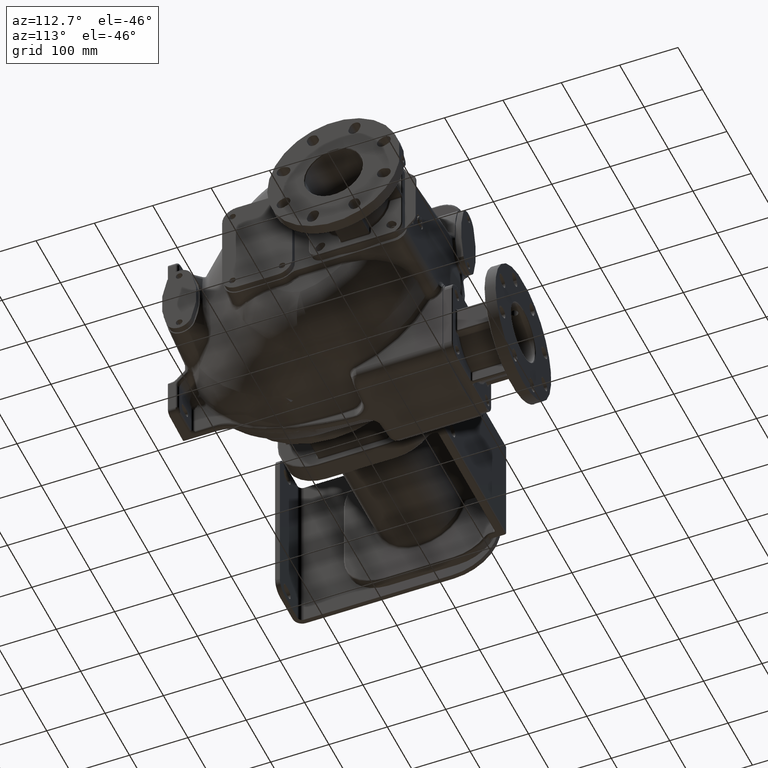
[diagram: clean part render]
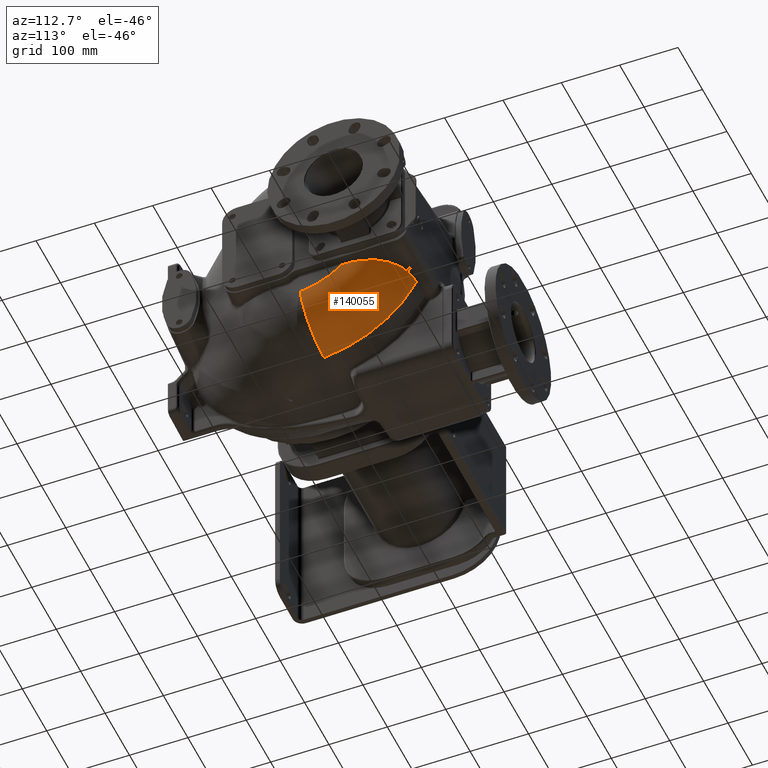
[diagram: same view with one face highlighted and labeled with its STEP entity id]
A machine part, auxiliary view. The second image highlights one B-rep face of the part: STEP entity #140055.
In plain terms, the highlighted toroidal blend (fillet) surface has major radius 122.893 mm and minor (blend) radius 80 mm.
Its self-contained STEP definition (entity closure, byte-faithful):
#5349=CARTESIAN_POINT('',(1.227919597364E2,2.718678243979E2,-1.923675415175E1));
#5350=DIRECTION('',(1.E0,0.E0,0.E0));
#5351=DIRECTION('',(0.E0,1.086550866908E-1,-9.940795099670E-1));
#5352=AXIS2_PLACEMENT_3D('',#5349,#5350,#5351);
#47374=CARTESIAN_POINT('',(1.999999998721E2,3.560730456565E2,
-1.087473705156E2));
#47375=CARTESIAN_POINT('',(2.000000003021E2,3.567932278667E2,
-1.087152714521E2));
#47376=CARTESIAN_POINT('',(1.999917094267E2,3.582296281779E2,
-1.086523000986E2));
#47377=CARTESIAN_POINT('',(1.999535934498E2,3.603711623007E2,
-1.085617021505E2));
#47378=CARTESIAN_POINT('',(1.998889913885E2,3.625009669061E2,
-1.084750307102E2));
#47379=CARTESIAN_POINT('',(1.997970955267E2,3.646196702451E2,
-1.083923703119E2));
#47380=CARTESIAN_POINT('',(1.996770925921E2,3.667280041519E2,
-1.083137931186E2));
#47381=CARTESIAN_POINT('',(1.995281571725E2,3.688266308614E2,
-1.082393791746E2));
#47382=CARTESIAN_POINT('',(1.993494364292E2,3.709163112242E2,
-1.081691873256E2));
#47383=CARTESIAN_POINT('',(1.991400472850E2,3.729977651175E2,
-1.081032866905E2));
#47384=CARTESIAN_POINT('',(1.988990736091E2,3.750716583915E2,
-1.080417477800E2));
#47385=CARTESIAN_POINT('',(1.986255775552E2,3.771384999922E2,
-1.079846349701E2));
#47386=CARTESIAN_POINT('',(1.983185912380E2,3.791987223403E2,
-1.079320303964E2));
#47387=CARTESIAN_POINT('',(1.979770507147E2,3.812530527877E2,
-1.078839993961E2));
#47388=CARTESIAN_POINT('',(1.975998089351E2,3.833022680334E2,
-1.078406114483E2));
#47389=CARTESIAN_POINT('',(1.971856221298E2,3.853471165994E2,
-1.078019567680E2));
#47390=CARTESIAN_POINT('',(1.967335510782E2,3.873866448615E2,
-1.077681408622E2));
#47391=CARTESIAN_POINT('',(1.962424343641E2,3.894208486088E2,
-1.077392627659E2));
#47392=CARTESIAN_POINT('',(1.957121785075E2,3.914454241450E2,
-1.077154769820E2));
#47393=CARTESIAN_POINT('',(1.951448772378E2,3.934497292690E2,
-1.076969313665E2));
#47394=CARTESIAN_POINT('',(1.945432435753E2,3.954241083317E2,
-1.076836769120E2));
#47395=CARTESIAN_POINT('',(1.939093623556E2,3.973632413848E2,
-1.076756385963E2));
#47396=CARTESIAN_POINT('',(1.932457407393E2,3.992619676506E2,
-1.076726916267E2));
#47397=CARTESIAN_POINT('',(1.925543200890E2,4.011180060587E2,
-1.076746672953E2));
#47398=CARTESIAN_POINT('',(1.918349414431E2,4.029348025940E2,
-1.076813834887E2));
#47399=CARTESIAN_POINT('',(1.910874587751E2,4.047149817058E2,
-1.076927119968E2));
#47400=CARTESIAN_POINT('',(1.903123940634E2,4.064592241365E2,
-1.077085185177E2));
#47401=CARTESIAN_POINT('',(1.895104683492E2,4.081677154511E2,
-1.077286689632E2));
#47402=CARTESIAN_POINT('',(1.886822597619E2,4.098409131010E2,
-1.077530481064E2));
#47403=CARTESIAN_POINT('',(1.878282120441E2,4.114794721120E2,
-1.077815306951E2));
#47404=CARTESIAN_POINT('',(1.869487017130E2,4.130840490166E2,
-1.078140177947E2));
#47405=CARTESIAN_POINT('',(1.860442009356E2,4.146550345531E2,
-1.078504041052E2));
#47406=CARTESIAN_POINT('',(1.851151914418E2,4.161927492974E2,
-1.078905838122E2));
#47407=CARTESIAN_POINT('',(1.841621111743E2,4.176975211101E2,
-1.079344716611E2));
#47408=CARTESIAN_POINT('',(1.831854302953E2,4.191695877575E2,
-1.079819653507E2));
#47409=CARTESIAN_POINT('',(1.821855666025E2,4.206092130730E2,
-1.080329830118E2));
#47410=CARTESIAN_POINT('',(1.811629699829E2,4.220165720677E2,
-1.080874404751E2));
#47411=CARTESIAN_POINT('',(1.801180931412E2,4.233918093874E2,
-1.081452478353E2));
#47412=CARTESIAN_POINT('',(1.790513581399E2,4.247350681575E2,
-1.082063361406E2));
#47413=CARTESIAN_POINT('',(1.779632275987E2,4.260464229930E2,
-1.082706185792E2));
#47414=CARTESIAN_POINT('',(1.768541281185E2,4.273259636057E2,
-1.083380235782E2));
#47415=CARTESIAN_POINT('',(1.757245039787E2,4.285737350885E2,
-1.084084813993E2));
#47416=CARTESIAN_POINT('',(1.745748085072E2,4.297897625552E2,
-1.084819116903E2));
#47417=CARTESIAN_POINT('',(1.734054694344E2,4.309740712849E2,
-1.085582551491E2));
#47418=CARTESIAN_POINT('',(1.722169490559E2,4.321266453290E2,
-1.086374361233E2));
#47419=CARTESIAN_POINT('',(1.710096863823E2,4.332474764382E2,
-1.087193888433E2));
#47420=CARTESIAN_POINT('',(1.697841302529E2,4.343365317884E2,
-1.088040536601E2));
#47421=CARTESIAN_POINT('',(1.685407427937E2,4.353937664116E2,
-1.088913565356E2));
#47422=CARTESIAN_POINT('',(1.672799650161E2,4.364191352839E2,
-1.089812438377E2));
#47423=CARTESIAN_POINT('',(1.660022650654E2,4.374125706038E2,
-1.090736484289E2));
#47424=CARTESIAN_POINT('',(1.647080971316E2,4.383740090773E2,
-1.091685076924E2));
#47425=CARTESIAN_POINT('',(1.633979219361E2,4.393033715009E2,
-1.092657690180E2));
#47426=CARTESIAN_POINT('',(1.620722163985E2,4.402005728156E2,
-1.093653627986E2));
#47427=CARTESIAN_POINT('',(1.607314403651E2,4.410655276432E2,
-1.094672383118E2));
#47428=CARTESIAN_POINT('',(1.593760680311E2,4.418981429986E2,
-1.095713354947E2));
#47429=CARTESIAN_POINT('',(1.580065651537E2,4.426983300442E2,
-1.096775938020E2));
#47430=CARTESIAN_POINT('',(1.566234091769E2,4.434659840245E2,
-1.097859653343E2));
#47431=CARTESIAN_POINT('',(1.552270997350E2,4.442009973874E2,
-1.098963836078E2));
#47432=CARTESIAN_POINT('',(1.538181232535E2,4.449032628960E2,
-1.100087985501E2));
#47433=CARTESIAN_POINT('',(1.523969654302E2,4.455726766317E2,
-1.101231557815E2));
#47434=CARTESIAN_POINT('',(1.509641080635E2,4.462091390063E2,
-1.102393955406E2));
#47435=CARTESIAN_POINT('',(1.495200389296E2,4.468125423678E2,
-1.103574744366E2));
#47436=CARTESIAN_POINT('',(1.485501418436E2,4.471927145759E2,
-1.104373799013E2));
#47437=CARTESIAN_POINT('',(1.480635029620E2,4.473772515886E2,
-1.104776202630E2));
#47439=CARTESIAN_POINT('',(1.480635029620E2,4.473772515886E2,
-1.104776202630E2));
#47440=CARTESIAN_POINT('',(1.475343552027E2,4.475779102494E2,
-1.105213733408E2));
#47441=CARTESIAN_POINT('',(1.464780302243E2,4.479660949965E2,
-1.106047341338E2));
#47442=CARTESIAN_POINT('',(1.448994124626E2,4.485091191451E2,
-1.107198879803E2));
#47443=CARTESIAN_POINT('',(1.433304871120E2,4.490118453217E2,
-1.108272460948E2));
#47444=CARTESIAN_POINT('',(1.417740449691E2,4.494738559719E2,
-1.109289148221E2));
#47445=CARTESIAN_POINT('',(1.402333132918E2,4.498949563166E2,
-1.110266140255E2));
#47446=CARTESIAN_POINT('',(1.387109454478E2,4.502753790753E2,
-1.111219803840E2));
#47447=CARTESIAN_POINT('',(1.372060413050E2,4.506163788063E2,
-1.112166214858E2));
#47448=CARTESIAN_POINT('',(1.357179861151E2,4.509191257923E2,
-1.113117849829E2));
#47449=CARTESIAN_POINT('',(1.342457077820E2,4.511847472466E2,
-1.114087080735E2));
#47450=CARTESIAN_POINT('',(1.327881567394E2,4.514143704111E2,
-1.115082703285E2));
#47451=CARTESIAN_POINT('',(1.313435321691E2,4.516091176083E2,
-1.116112980755E2));
#47452=CARTESIAN_POINT('',(1.299082278343E2,4.517701230646E2,
-1.117186636348E2));
#47453=CARTESIAN_POINT('',(1.284786163541E2,4.518982831639E2,
-1.118309789724E2));
#47454=CARTESIAN_POINT('',(1.270533212369E2,4.519939782876E2,
-1.119487614217E2));
#47455=CARTESIAN_POINT('',(1.256312205682E2,4.520575642547E2,
-1.120722577673E2));
#47456=CARTESIAN_POINT('',(1.242112944828E2,4.520893242273E2,
-1.122016082418E2));
#47457=CARTESIAN_POINT('',(1.232649014161E2,4.520893920394E2,
-1.122918574115E2));
#47458=CARTESIAN_POINT('',(1.227919597247E2,4.520841756292E2,
-1.123379375946E2));
#47470=CARTESIAN_POINT('',(1.2E2,2.852207592561E2,-1.414020882142E2));
#47471=DIRECTION('',(0.E0,-9.940795152919E-1,-1.086550379737E-1));
#47472=DIRECTION('',(3.489949670040E-2,1.085888482603E-1,-9.934739489104E-1));
#47473=AXIS2_PLACEMENT_3D('',#47470,#47471,#47472);
#50107=CARTESIAN_POINT('',(2.E2,2.718678243979E2,-1.923675415175E1));
#50108=DIRECTION('',(1.E0,0.E0,0.E0));
#50109=DIRECTION('',(0.E0,1.086550374149E-1,-9.940795153530E-1));
#50110=AXIS2_PLACEMENT_3D('',#50107,#50108,#50109);
#64067=CARTESIAN_POINT('',(2.E2,2.852207591875E2,-1.414020882217E2));
#64068=CARTESIAN_POINT('',(2.E2,3.560730456472E2,-1.087473704510E2));
#64069=VERTEX_POINT('',#64067);
#64070=VERTEX_POINT('',#64068);
#64073=CARTESIAN_POINT('',(1.227919597364E2,2.939078769995E2,
-2.208800030517E2));
#64074=CARTESIAN_POINT('',(1.227919597364E2,4.520841759271E2,
-1.123379377485E2));
#64075=VERTEX_POINT('',#64073);
#64076=VERTEX_POINT('',#64074);
#64246=VERTEX_POINT('',#47437);
#140040=CARTESIAN_POINT('',(1.2E2,2.718678243979E2,-1.923675415175E1));
#140041=DIRECTION('',(1.E0,0.E0,0.E0));
#140042=DIRECTION('',(0.E0,-1.015129999537E-2,9.999484742267E-1));
#140043=AXIS2_PLACEMENT_3D('',#140040,#140041,#140042);
#140044=TOROIDAL_SURFACE('',#140043,1.228929197143E2,8.E1);
#140045=ORIENTED_EDGE('',*,*,#140030,.T.);
#140047=ORIENTED_EDGE('',*,*,#140046,.T.);
#140048=ORIENTED_EDGE('',*,*,#75593,.F.);
#140050=ORIENTED_EDGE('',*,*,#140049,.T.);
#140052=ORIENTED_EDGE('',*,*,#140051,.T.);
#140053=EDGE_LOOP('',(#140045,#140047,#140048,#140050,#140052));
#140054=FACE_OUTER_BOUND('',#140053,.F.);
#140055=ADVANCED_FACE('',(#140054),#140044,.T.);
#5353=CIRCLE('',#5352,2.028441858807E2);
#47438=B_SPLINE_CURVE_WITH_KNOTS('',3,(#47374,#47375,#47376,#47377,#47378,
#47379,#47380,#47381,#47382,#47383,#47384,#47385,#47386,#47387,#47388,#47389,
#47390,#47391,#47392,#47393,#47394,#47395,#47396,#47397,#47398,#47399,#47400,
#47401,#47402,#47403,#47404,#47405,#47406,#47407,#47408,#47409,#47410,#47411,
#47412,#47413,#47414,#47415,#47416,#47417,#47418,#47419,#47420,#47421,#47422,
#47423,#47424,#47425,#47426,#47427,#47428,#47429,#47430,#47431,#47432,#47433,
#47434,#47435,#47436,#47437),.UNSPECIFIED.,.F.,.F.,(4,1,1,1,1,1,1,1,1,1,1,1,1,1,
1,1,1,1,1,1,1,1,1,1,1,1,1,1,1,1,1,1,1,1,1,1,1,1,1,1,1,1,1,1,1,1,1,1,1,1,1,1,1,1,
1,1,1,1,1,1,1,4),(0.E0,1.639344262295E-2,3.278688524590E-2,4.918032786885E-2,
6.557377049180E-2,8.196721311475E-2,9.836065573770E-2,1.147540983607E-1,
1.311475409836E-1,1.475409836066E-1,1.639344262295E-1,1.803278688525E-1,
1.967213114754E-1,2.131147540984E-1,2.295081967213E-1,2.459016393443E-1,
2.622950819672E-1,2.786885245902E-1,2.950819672131E-1,3.114754098361E-1,
3.278688524590E-1,3.442622950820E-1,3.606557377049E-1,3.770491803279E-1,
3.934426229508E-1,4.098360655738E-1,4.262295081967E-1,4.426229508197E-1,
4.590163934426E-1,4.754098360656E-1,4.918032786885E-1,5.081967213115E-1,
5.245901639344E-1,5.409836065574E-1,5.573770491803E-1,5.737704918033E-1,
5.901639344262E-1,6.065573770492E-1,6.229508196721E-1,6.393442622951E-1,
6.557377049180E-1,6.721311475410E-1,6.885245901639E-1,7.049180327869E-1,
7.213114754098E-1,7.377049180328E-1,7.540983606557E-1,7.704918032787E-1,
7.868852459016E-1,8.032786885246E-1,8.196721311475E-1,8.360655737705E-1,
8.524590163934E-1,8.688524590164E-1,8.852459016393E-1,9.016393442623E-1,
9.180327868852E-1,9.344262295082E-1,9.508196721311E-1,9.672131147541E-1,
9.836065573770E-1,1.E0),.UNSPECIFIED.);
#47459=B_SPLINE_CURVE_WITH_KNOTS('',3,(#47439,#47440,#47441,#47442,#47443,
#47444,#47445,#47446,#47447,#47448,#47449,#47450,#47451,#47452,#47453,#47454,
#47455,#47456,#47457,#47458),.UNSPECIFIED.,.F.,.F.,(4,1,1,1,1,1,1,1,1,1,1,1,1,1,
1,1,1,4),(0.E0,5.882352941176E-2,1.176470588235E-1,1.764705882353E-1,
2.352941176471E-1,2.941176470588E-1,3.529411764706E-1,4.117647058824E-1,
4.705882352941E-1,5.294117647059E-1,5.882352941176E-1,6.470588235294E-1,
7.058823529412E-1,7.647058823529E-1,8.235294117647E-1,8.823529411765E-1,
9.411764705882E-1,1.E0),.UNSPECIFIED.);
#47474=CIRCLE('',#47473,8.E1);
#50111=CIRCLE('',#50110,1.228929197143E2);
#75593=EDGE_CURVE('',#64075,#64076,#5353,.T.);
#140030=EDGE_CURVE('',#64070,#64246,#47438,.T.);
#140046=EDGE_CURVE('',#64246,#64076,#47459,.T.);
#140049=EDGE_CURVE('',#64075,#64069,#47474,.T.);
#140051=EDGE_CURVE('',#64069,#64070,#50111,.T.);